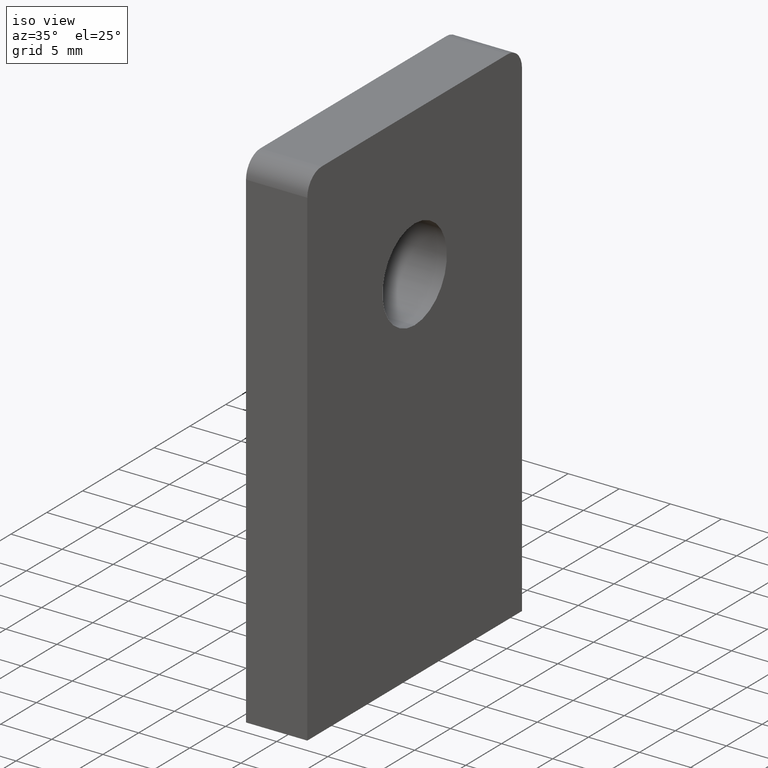
[diagram: clean part render]
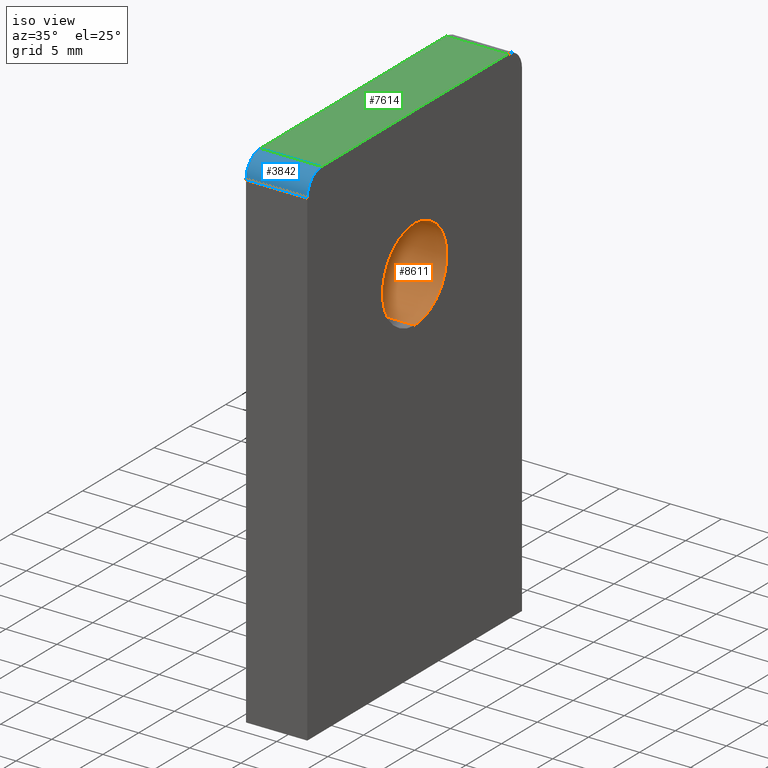
[diagram: same view with three faces highlighted in distinct colors, each labeled with its STEP entity id]
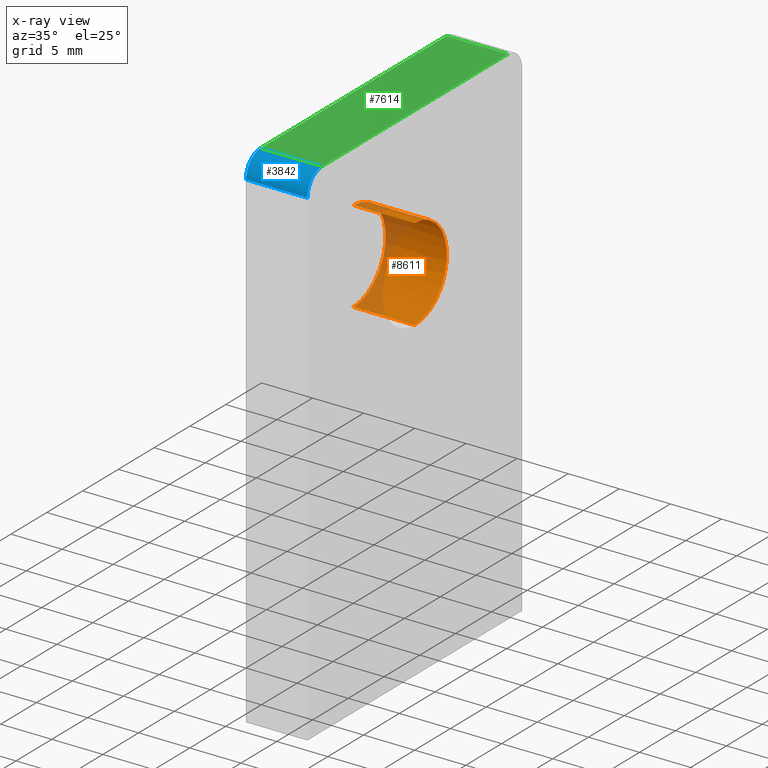
[diagram: x-ray of the same camera — body ghosted, the three highlighted faces saturated]
A machine part, iso view with three faces highlighted in distinct colors.
The next image is the same camera in x-ray (body ghosted, the three faces saturated) — at least one of them is partly hidden behind the body in this view.
Their STEP definitions:

[orange] entity #8611 — the highlighted cylindrical surface (partial cylindrical patch) has radius 4.5 mm, axis along (1, -0, -0).
#447 = CARTESIAN_POINT ( 'NONE',  ( 3.000000000000000000, 5.510910596163087600E-016, 40.00000000000000000 ) ) ;
#518 = CARTESIAN_POINT ( 'NONE',  ( -3.000000000000000000, 5.510910596163087600E-016, 40.00000000000000000 ) ) ;
#519 = CIRCLE ( 'NONE', #4534, 4.500000000000000900 ) ;
#623 = FACE_OUTER_BOUND ( 'NONE', #8551, .T. ) ;
#1031 = EDGE_CURVE ( 'NONE', #7100, #8805, #8349, .T. ) ;
#1295 = CARTESIAN_POINT ( 'NONE',  ( -3.000000000000000000, 0.0000000000000000000, 30.99999999999999600 ) ) ;
#1341 = VERTEX_POINT ( 'NONE', #1295 ) ;
#1628 = CARTESIAN_POINT ( 'NONE',  ( -3.000000000000000000, 5.510910596163090500E-016, 40.00000000000000000 ) ) ;
#1681 = VERTEX_POINT ( 'NONE', #3397 ) ;
#2308 = DIRECTION ( 'NONE',  ( 0.0000000000000000000, 0.0000000000000000000, -1.000000000000000000 ) ) ;
#2633 = ORIENTED_EDGE ( 'NONE', *, *, #5302, .T. ) ;
#3242 = CARTESIAN_POINT ( 'NONE',  ( -3.000000000000000000, 0.0000000000000000000, 35.50000000000000000 ) ) ;
#3397 = CARTESIAN_POINT ( 'NONE',  ( 3.000000000000000000, 0.0000000000000000000, 30.99999999999999600 ) ) ;
#3728 = DIRECTION ( 'NONE',  ( 1.000000000000000000, -0.0000000000000000000, -0.0000000000000000000 ) ) ;
#4534 = AXIS2_PLACEMENT_3D ( 'NONE', #9333, #7879, #5350 ) ;
#4617 = AXIS2_PLACEMENT_3D ( 'NONE', #3242, #8816, #2308 ) ;
#5046 = CYLINDRICAL_SURFACE ( 'NONE', #4617, 4.500000000000000900 ) ;
#5241 = DIRECTION ( 'NONE',  ( 1.000000000000000000, 0.0000000000000000000, 0.0000000000000000000 ) ) ;
#5294 = ORIENTED_EDGE ( 'NONE', *, *, #1031, .F. ) ;
#5302 = EDGE_CURVE ( 'NONE', #1681, #8805, #519, .T. ) ;
#5350 = DIRECTION ( 'NONE',  ( 0.0000000000000000000, 0.0000000000000000000, -1.000000000000000000 ) ) ;
#5702 = CIRCLE ( 'NONE', #9713, 4.500000000000000900 ) ;
#6109 = CARTESIAN_POINT ( 'NONE',  ( -3.000000000000000000, 0.0000000000000000000, 30.99999999999999600 ) ) ;
#6157 = VECTOR ( 'NONE', #3728, 1000.000000000000000 ) ;
#6380 = VECTOR ( 'NONE', #6446, 1000.000000000000000 ) ;
#6446 = DIRECTION ( 'NONE',  ( 1.000000000000000000, -0.0000000000000000000, -0.0000000000000000000 ) ) ;
#6901 = EDGE_CURVE ( 'NONE', #1341, #7100, #5702, .T. ) ;
#6934 = CARTESIAN_POINT ( 'NONE',  ( -3.000000000000000000, 0.0000000000000000000, 35.50000000000000000 ) ) ;
#7100 = VERTEX_POINT ( 'NONE', #518 ) ;
#7670 = DIRECTION ( 'NONE',  ( 0.0000000000000000000, 0.0000000000000000000, -1.000000000000000000 ) ) ;
#7879 = DIRECTION ( 'NONE',  ( 1.000000000000000000, 0.0000000000000000000, 0.0000000000000000000 ) ) ;
#7957 = ORIENTED_EDGE ( 'NONE', *, *, #6901, .F. ) ;
#8349 = LINE ( 'NONE', #1628, #6380 ) ;
#8378 = LINE ( 'NONE', #6109, #6157 ) ;
#8551 = EDGE_LOOP ( 'NONE', ( #5294, #7957, #8570, #2633 ) ) ;
#8570 = ORIENTED_EDGE ( 'NONE', *, *, #9799, .T. ) ;
#8611 = ADVANCED_FACE ( 'NONE', ( #623 ), #5046, .F. ) ;
#8805 = VERTEX_POINT ( 'NONE', #447 ) ;
#8816 = DIRECTION ( 'NONE',  ( 1.000000000000000000, -0.0000000000000000000, -0.0000000000000000000 ) ) ;
#9333 = CARTESIAN_POINT ( 'NONE',  ( 3.000000000000000000, 0.0000000000000000000, 35.50000000000000000 ) ) ;
#9713 = AXIS2_PLACEMENT_3D ( 'NONE', #6934, #5241, #7670 ) ;
#9799 = EDGE_CURVE ( 'NONE', #1341, #1681, #8378, .T. ) ;

[blue] entity #3842 — the highlighted cylindrical surface (edge-blend (fillet) strip) has radius 2 mm, axis along (-1, 0, 0).
#89 = EDGE_CURVE ( 'NONE', #9442, #3463, #3756, .T. ) ;
#755 = DIRECTION ( 'NONE',  ( 1.000000000000000000, -0.0000000000000000000, -0.0000000000000000000 ) ) ;
#926 = CYLINDRICAL_SURFACE ( 'NONE', #6927, 2.000000000000001800 ) ;
#1030 = LINE ( 'NONE', #2779, #3172 ) ;
#1273 = AXIS2_PLACEMENT_3D ( 'NONE', #5094, #5202, #6735 ) ;
#1610 = VECTOR ( 'NONE', #755, 1000.000000000000000 ) ;
#2459 = EDGE_CURVE ( 'NONE', #3463, #7152, #3464, .T. ) ;
#2618 = DIRECTION ( 'NONE',  ( 0.0000000000000000000, 0.0000000000000000000, 1.000000000000000000 ) ) ;
#2779 = CARTESIAN_POINT ( 'NONE',  ( 3.000000000000000000, -15.00000000000000000, 47.99999999999997200 ) ) ;
#2999 = ORIENTED_EDGE ( 'NONE', *, *, #2459, .F. ) ;
#3096 = VERTEX_POINT ( 'NONE', #6947 ) ;
#3107 = AXIS2_PLACEMENT_3D ( 'NONE', #7303, #8165, #8197 ) ;
#3172 = VECTOR ( 'NONE', #8367, 1000.000000000000000 ) ;
#3202 = FACE_OUTER_BOUND ( 'NONE', #7115, .T. ) ;
#3463 = VERTEX_POINT ( 'NONE', #9200 ) ;
#3464 = CIRCLE ( 'NONE', #1273, 2.000000000000001800 ) ;
#3734 = ORIENTED_EDGE ( 'NONE', *, *, #6255, .F. ) ;
#3756 = LINE ( 'NONE', #7001, #1610 ) ;
#3842 = ADVANCED_FACE ( 'NONE', ( #3202 ), #926, .T. ) ;
#4139 = CARTESIAN_POINT ( 'NONE',  ( 3.000000000000000000, -13.00000000000000000, 47.99999999999997200 ) ) ;
#5094 = CARTESIAN_POINT ( 'NONE',  ( 3.000000000000000000, -13.00000000000000000, 47.99999999999997200 ) ) ;
#5202 = DIRECTION ( 'NONE',  ( 1.000000000000000000, 0.0000000000000000000, 0.0000000000000000000 ) ) ;
#5822 = DIRECTION ( 'NONE',  ( -1.000000000000000000, 0.0000000000000000000, 0.0000000000000000000 ) ) ;
#5843 = EDGE_CURVE ( 'NONE', #7152, #3096, #1030, .T. ) ;
#6255 = EDGE_CURVE ( 'NONE', #3096, #9442, #8910, .T. ) ;
#6735 = DIRECTION ( 'NONE',  ( 0.0000000000000000000, 0.0000000000000000000, 1.000000000000000000 ) ) ;
#6833 = CARTESIAN_POINT ( 'NONE',  ( -3.000000000000000000, -13.00000000000000000, 49.99999999999997200 ) ) ;
#6927 = AXIS2_PLACEMENT_3D ( 'NONE', #4139, #5822, #2618 ) ;
#6947 = CARTESIAN_POINT ( 'NONE',  ( -3.000000000000000000, -15.00000000000000000, 47.99999999999997200 ) ) ;
#7001 = CARTESIAN_POINT ( 'NONE',  ( 3.000000000000000000, -13.00000000000000000, 49.99999999999997200 ) ) ;
#7115 = EDGE_LOOP ( 'NONE', ( #2999, #8908, #3734, #8027 ) ) ;
#7152 = VERTEX_POINT ( 'NONE', #9714 ) ;
#7303 = CARTESIAN_POINT ( 'NONE',  ( -3.000000000000000000, -13.00000000000000000, 47.99999999999997200 ) ) ;
#8027 = ORIENTED_EDGE ( 'NONE', *, *, #5843, .F. ) ;
#8165 = DIRECTION ( 'NONE',  ( -1.000000000000000000, -0.0000000000000000000, -0.0000000000000000000 ) ) ;
#8197 = DIRECTION ( 'NONE',  ( 0.0000000000000000000, 0.0000000000000000000, 1.000000000000000000 ) ) ;
#8367 = DIRECTION ( 'NONE',  ( -1.000000000000000000, 0.0000000000000000000, 0.0000000000000000000 ) ) ;
#8908 = ORIENTED_EDGE ( 'NONE', *, *, #89, .F. ) ;
#8910 = CIRCLE ( 'NONE', #3107, 2.000000000000001800 ) ;
#9200 = CARTESIAN_POINT ( 'NONE',  ( 3.000000000000000000, -13.00000000000000000, 49.99999999999997200 ) ) ;
#9442 = VERTEX_POINT ( 'NONE', #6833 ) ;
#9714 = CARTESIAN_POINT ( 'NONE',  ( 3.000000000000000000, -15.00000000000000000, 47.99999999999997200 ) ) ;

[green] entity #7614 — the highlighted planar face has unit normal (0, 0, -1).
#4 = ORIENTED_EDGE ( 'NONE', *, *, #89, .T. ) ;
#29 = EDGE_CURVE ( 'NONE', #957, #3463, #2107, .T. ) ;
#89 = EDGE_CURVE ( 'NONE', #9442, #3463, #3756, .T. ) ;
#359 = ORIENTED_EDGE ( 'NONE', *, *, #6975, .T. ) ;
#380 = VECTOR ( 'NONE', #5052, 1000.000000000000000 ) ;
#755 = DIRECTION ( 'NONE',  ( 1.000000000000000000, -0.0000000000000000000, -0.0000000000000000000 ) ) ;
#957 = VERTEX_POINT ( 'NONE', #1884 ) ;
#1521 = CARTESIAN_POINT ( 'NONE',  ( 3.000000000000000000, -15.00000000000000000, 49.99999999999997200 ) ) ;
#1610 = VECTOR ( 'NONE', #755, 1000.000000000000000 ) ;
#1833 = CARTESIAN_POINT ( 'NONE',  ( 3.000000000000000000, 12.99999999999999800, 49.99999999999997200 ) ) ;
#1884 = CARTESIAN_POINT ( 'NONE',  ( 3.000000000000000000, 12.99999999999999800, 49.99999999999997200 ) ) ;
#2085 = DIRECTION ( 'NONE',  ( -0.0000000000000000000, -1.000000000000000000, -0.0000000000000000000 ) ) ;
#2096 = EDGE_LOOP ( 'NONE', ( #5390, #4, #6264, #359 ) ) ;
#2107 = LINE ( 'NONE', #2865, #10347 ) ;
#2158 = LINE ( 'NONE', #1833, #380 ) ;
#2325 = DIRECTION ( 'NONE',  ( -1.000000000000000000, 0.0000000000000000000, -0.0000000000000000000 ) ) ;
#2865 = CARTESIAN_POINT ( 'NONE',  ( 3.000000000000000000, -15.00000000000000000, 49.99999999999997200 ) ) ;
#3463 = VERTEX_POINT ( 'NONE', #9200 ) ;
#3756 = LINE ( 'NONE', #7001, #1610 ) ;
#3794 = DIRECTION ( 'NONE',  ( -0.0000000000000000000, -1.000000000000000000, -0.0000000000000000000 ) ) ;
#4649 = EDGE_CURVE ( 'NONE', #7890, #9442, #5081, .T. ) ;
#5052 = DIRECTION ( 'NONE',  ( -1.000000000000000000, 0.0000000000000000000, 0.0000000000000000000 ) ) ;
#5081 = LINE ( 'NONE', #6990, #5457 ) ;
#5390 = ORIENTED_EDGE ( 'NONE', *, *, #4649, .T. ) ;
#5457 = VECTOR ( 'NONE', #2085, 1000.000000000000000 ) ;
#5692 = AXIS2_PLACEMENT_3D ( 'NONE', #1521, #7135, #2325 ) ;
#6264 = ORIENTED_EDGE ( 'NONE', *, *, #29, .F. ) ;
#6343 = PLANE ( 'NONE',  #5692 ) ;
#6833 = CARTESIAN_POINT ( 'NONE',  ( -3.000000000000000000, -13.00000000000000000, 49.99999999999997200 ) ) ;
#6975 = EDGE_CURVE ( 'NONE', #957, #7890, #2158, .T. ) ;
#6990 = CARTESIAN_POINT ( 'NONE',  ( -3.000000000000000000, -15.00000000000000000, 49.99999999999997200 ) ) ;
#7001 = CARTESIAN_POINT ( 'NONE',  ( 3.000000000000000000, -13.00000000000000000, 49.99999999999997200 ) ) ;
#7135 = DIRECTION ( 'NONE',  ( 0.0000000000000000000, 0.0000000000000000000, -1.000000000000000000 ) ) ;
#7614 = ADVANCED_FACE ( 'NONE', ( #8411 ), #6343, .F. ) ;
#7890 = VERTEX_POINT ( 'NONE', #9209 ) ;
#8411 = FACE_OUTER_BOUND ( 'NONE', #2096, .T. ) ;
#9200 = CARTESIAN_POINT ( 'NONE',  ( 3.000000000000000000, -13.00000000000000000, 49.99999999999997200 ) ) ;
#9209 = CARTESIAN_POINT ( 'NONE',  ( -3.000000000000000000, 12.99999999999999800, 49.99999999999997200 ) ) ;
#9442 = VERTEX_POINT ( 'NONE', #6833 ) ;
#10347 = VECTOR ( 'NONE', #3794, 1000.000000000000000 ) ;